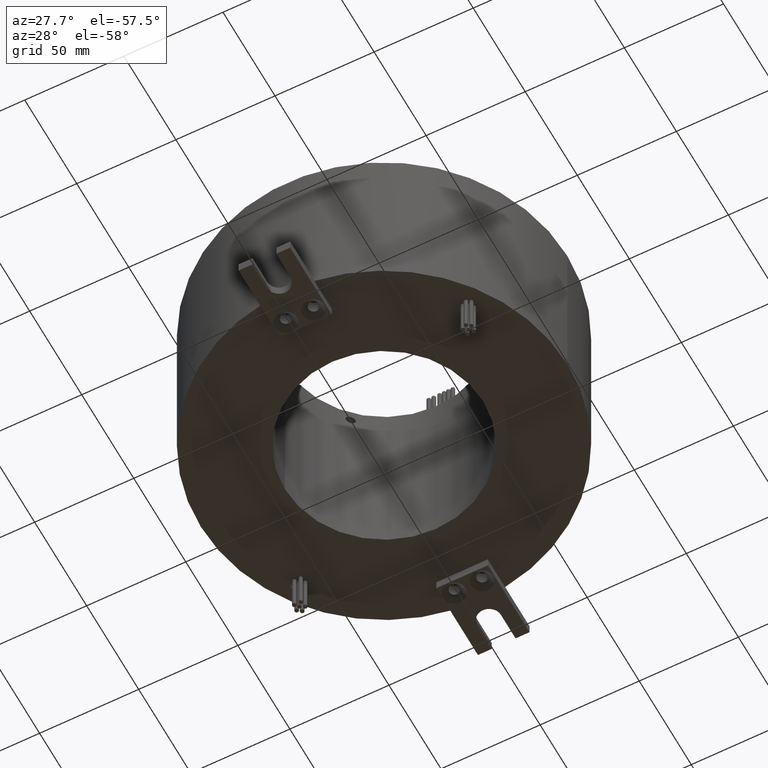
[diagram: clean part render]
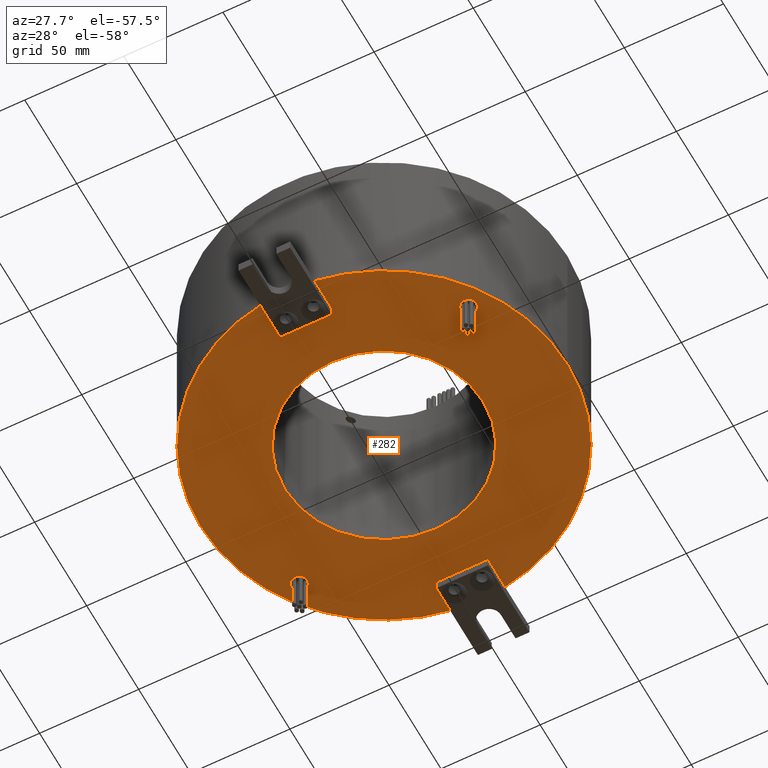
[diagram: same view with one face highlighted and labeled with its STEP entity id]
A machine part, auxiliary view. The second image highlights one B-rep face of the part: STEP entity #282.
In plain terms, the highlighted planar face has unit normal (0, -0, 1).
Its self-contained STEP definition (entity closure, byte-faithful):
#51 = DIRECTION ( 'NONE',  ( 1.000000000000000000, 0.0000000000000000000, 0.0000000000000000000 ) ) ;
#83 = VECTOR ( 'NONE', #1639, 1000.000000000000000 ) ;
#180 = CARTESIAN_POINT ( 'NONE',  ( -13.00000000000000000, -91.58193053217429700, -102.0000000000000100 ) ) ;
#183 = CIRCLE ( 'NONE', #247, 50.00000000000000000 ) ;
#212 = VERTEX_POINT ( 'NONE', #682 ) ;
#227 = EDGE_CURVE ( 'NONE', #212, #3614, #2913, .T. ) ;
#234 = VERTEX_POINT ( 'NONE', #3863 ) ;
#247 = AXIS2_PLACEMENT_3D ( 'NONE', #4790, #2410, #51 ) ;
#282 = ADVANCED_FACE ( 'NONE', ( #2545, #4661, #464, #592 ), #5061, .F. ) ;
#332 = EDGE_CURVE ( 'NONE', #2684, #212, #1148, .T. ) ;
#342 = DIRECTION ( 'NONE',  ( 0.0000000000000000000, -0.0000000000000000000, 1.000000000000000000 ) ) ;
#344 = DIRECTION ( 'NONE',  ( -0.0000000000000000000, -0.0000000000000000000, 1.000000000000000000 ) ) ;
#358 = DIRECTION ( 'NONE',  ( -8.673617379884036700E-017, 1.000000000000000000, 0.0000000000000000000 ) ) ;
#361 = VERTEX_POINT ( 'NONE', #2407 ) ;
#464 = FACE_BOUND ( 'NONE', #3023, .T. ) ;
#466 = ORIENTED_EDGE ( 'NONE', *, *, #1718, .F. ) ;
#478 = ORIENTED_EDGE ( 'NONE', *, *, #227, .F. ) ;
#487 = CARTESIAN_POINT ( 'NONE',  ( 12.99999999999999800, 75.00000000000000000, -102.0000000000000100 ) ) ;
#592 = FACE_OUTER_BOUND ( 'NONE', #5089, .T. ) ;
#682 = CARTESIAN_POINT ( 'NONE',  ( -13.00000000000000200, 75.00000000000000000, -102.0000000000000100 ) ) ;
#689 = DIRECTION ( 'NONE',  ( 0.0000000000000000000, 0.0000000000000000000, -1.000000000000000000 ) ) ;
#700 = VERTEX_POINT ( 'NONE', #3499 ) ;
#703 = EDGE_CURVE ( 'NONE', #2045, #838, #2113, .T. ) ;
#711 = CIRCLE ( 'NONE', #2582, 4.000000000000017800 ) ;
#720 = DIRECTION ( 'NONE',  ( 8.673617379884036700E-017, 1.000000000000000000, -0.0000000000000000000 ) ) ;
#747 = ORIENTED_EDGE ( 'NONE', *, *, #1646, .F. ) ;
#752 = AXIS2_PLACEMENT_3D ( 'NONE', #2695, #344, #3075 ) ;
#780 = CARTESIAN_POINT ( 'NONE',  ( -67.58004365384175600, 47.32005599896139400, -102.0000000000000100 ) ) ;
#787 = ORIENTED_EDGE ( 'NONE', *, *, #1426, .F. ) ;
#803 = ORIENTED_EDGE ( 'NONE', *, *, #4823, .T. ) ;
#830 = DIRECTION ( 'NONE',  ( -0.0000000000000000000, 0.0000000000000000000, -1.000000000000000000 ) ) ;
#838 = VERTEX_POINT ( 'NONE', #4737 ) ;
#878 = CIRCLE ( 'NONE', #3405, 50.00000000000000000 ) ;
#956 = VECTOR ( 'NONE', #720, 1000.000000000000000 ) ;
#979 = EDGE_CURVE ( 'NONE', #700, #234, #3157, .T. ) ;
#996 = CARTESIAN_POINT ( 'NONE',  ( -13.00000000000000200, -75.00000000000000000, -102.0000000000000100 ) ) ;
#1069 = CARTESIAN_POINT ( 'NONE',  ( 50.00000000000000000, 0.0000000000000000000, -102.0000000000000100 ) ) ;
#1078 = ORIENTED_EDGE ( 'NONE', *, *, #5056, .T. ) ;
#1092 = ORIENTED_EDGE ( 'NONE', *, *, #703, .F. ) ;
#1136 = ORIENTED_EDGE ( 'NONE', *, *, #4863, .F. ) ;
#1148 = LINE ( 'NONE', #1557, #83 ) ;
#1175 = AXIS2_PLACEMENT_3D ( 'NONE', #780, #3513, #1179 ) ;
#1179 = DIRECTION ( 'NONE',  ( -1.000000000000000000, 0.0000000000000000000, 0.0000000000000000000 ) ) ;
#1218 = DIRECTION ( 'NONE',  ( -0.0000000000000000000, -0.0000000000000000000, 1.000000000000000000 ) ) ;
#1340 = CIRCLE ( 'NONE', #3950, 92.50000000000000000 ) ;
#1350 = VECTOR ( 'NONE', #358, 1000.000000000000000 ) ;
#1395 = DIRECTION ( 'NONE',  ( -0.0000000000000000000, -0.0000000000000000000, 1.000000000000000000 ) ) ;
#1417 = CARTESIAN_POINT ( 'NONE',  ( 13.00000000000000000, 91.58193053217431200, -102.0000000000000100 ) ) ;
#1426 = EDGE_CURVE ( 'NONE', #361, #1448, #1340, .T. ) ;
#1427 = DIRECTION ( 'NONE',  ( 0.0000000000000000000, 0.0000000000000000000, 1.000000000000000000 ) ) ;
#1448 = VERTEX_POINT ( 'NONE', #1417 ) ;
#1449 = CIRCLE ( 'NONE', #3192, 4.000000000000003600 ) ;
#1530 = DIRECTION ( 'NONE',  ( -0.0000000000000000000, 0.0000000000000000000, -1.000000000000000000 ) ) ;
#1542 = CARTESIAN_POINT ( 'NONE',  ( -92.50000000000000000, 1.132798289211301700E-014, -102.0000000000000100 ) ) ;
#1557 = CARTESIAN_POINT ( 'NONE',  ( 12.99999999999999800, 75.00000000000000000, -102.0000000000000100 ) ) ;
#1639 = DIRECTION ( 'NONE',  ( -1.000000000000000000, 0.0000000000000000000, 0.0000000000000000000 ) ) ;
#1646 = EDGE_CURVE ( 'NONE', #4409, #4805, #3418, .T. ) ;
#1718 = EDGE_CURVE ( 'NONE', #4526, #4727, #4230, .T. ) ;
#1863 = CARTESIAN_POINT ( 'NONE',  ( 0.0000000000000000000, 0.0000000000000000000, -102.0000000000000100 ) ) ;
#1957 = ORIENTED_EDGE ( 'NONE', *, *, #4522, .F. ) ;
#2025 = ORIENTED_EDGE ( 'NONE', *, *, #979, .F. ) ;
#2045 = VERTEX_POINT ( 'NONE', #2692 ) ;
#2113 = CIRCLE ( 'NONE', #1175, 4.000000000000003600 ) ;
#2120 = CARTESIAN_POINT ( 'NONE',  ( 13.00000000000000200, -115.0000000000000000, -102.0000000000000100 ) ) ;
#2232 = CARTESIAN_POINT ( 'NONE',  ( 63.58004365384170600, -47.32005599896140800, -102.0000000000000100 ) ) ;
#2249 = DIRECTION ( 'NONE',  ( 1.000000000000000000, 0.0000000000000000000, 0.0000000000000000000 ) ) ;
#2324 = ORIENTED_EDGE ( 'NONE', *, *, #3681, .F. ) ;
#2345 = CIRCLE ( 'NONE', #3328, 92.50000000000000000 ) ;
#2388 = VERTEX_POINT ( 'NONE', #1542 ) ;
#2407 = CARTESIAN_POINT ( 'NONE',  ( 92.50000000000000000, 0.0000000000000000000, -102.0000000000000100 ) ) ;
#2410 = DIRECTION ( 'NONE',  ( 0.0000000000000000000, 0.0000000000000000000, 1.000000000000000000 ) ) ;
#2469 = CARTESIAN_POINT ( 'NONE',  ( 71.58004365384174200, -47.32005599896140800, -102.0000000000000100 ) ) ;
#2513 = DIRECTION ( 'NONE',  ( 8.673617379884034200E-017, -1.000000000000000000, -0.0000000000000000000 ) ) ;
#2545 = FACE_BOUND ( 'NONE', #5071, .T. ) ;
#2582 = AXIS2_PLACEMENT_3D ( 'NONE', #3868, #1530, #4269 ) ;
#2628 = DIRECTION ( 'NONE',  ( 1.000000000000000000, -0.0000000000000000000, -0.0000000000000000000 ) ) ;
#2634 = DIRECTION ( 'NONE',  ( -8.673617379884034200E-017, -1.000000000000000000, 0.0000000000000000000 ) ) ;
#2684 = VERTEX_POINT ( 'NONE', #487 ) ;
#2692 = CARTESIAN_POINT ( 'NONE',  ( -71.58004365384175600, 47.32005599896139400, -102.0000000000000100 ) ) ;
#2695 = CARTESIAN_POINT ( 'NONE',  ( 0.0000000000000000000, 0.0000000000000000000, -102.0000000000000100 ) ) ;
#2700 = CARTESIAN_POINT ( 'NONE',  ( -12.99999999999999800, -114.9999999999999900, -102.0000000000000100 ) ) ;
#2706 = CARTESIAN_POINT ( 'NONE',  ( -50.00000000000000000, 6.123233995736766100E-015, -102.0000000000000100 ) ) ;
#2899 = VECTOR ( 'NONE', #2628, 1000.000000000000000 ) ;
#2913 = LINE ( 'NONE', #3054, #956 ) ;
#2930 = AXIS2_PLACEMENT_3D ( 'NONE', #4675, #342, #3074 ) ;
#2965 = AXIS2_PLACEMENT_3D ( 'NONE', #3166, #830, #3563 ) ;
#2987 = VERTEX_POINT ( 'NONE', #1069 ) ;
#3003 = CARTESIAN_POINT ( 'NONE',  ( 13.00000000000000200, 115.0000000000000000, -102.0000000000000100 ) ) ;
#3022 = CARTESIAN_POINT ( 'NONE',  ( -67.58004365384175600, 47.32005599896139400, -102.0000000000000100 ) ) ;
#3023 = EDGE_LOOP ( 'NONE', ( #1078, #803 ) ) ;
#3043 = EDGE_CURVE ( 'NONE', #4727, #4526, #711, .T. ) ;
#3054 = CARTESIAN_POINT ( 'NONE',  ( -12.99999999999999800, 114.9999999999999900, -102.0000000000000100 ) ) ;
#3074 = DIRECTION ( 'NONE',  ( 1.000000000000000000, 0.0000000000000000000, 0.0000000000000000000 ) ) ;
#3075 = DIRECTION ( 'NONE',  ( 1.000000000000000000, 0.0000000000000000000, 0.0000000000000000000 ) ) ;
#3157 = LINE ( 'NONE', #2120, #4226 ) ;
#3166 = CARTESIAN_POINT ( 'NONE',  ( 67.58004365384172700, -47.32005599896140800, -102.0000000000000100 ) ) ;
#3176 = ORIENTED_EDGE ( 'NONE', *, *, #3604, .F. ) ;
#3192 = AXIS2_PLACEMENT_3D ( 'NONE', #3022, #689, #3431 ) ;
#3194 = CIRCLE ( 'NONE', #3502, 92.50000000000000000 ) ;
#3328 = AXIS2_PLACEMENT_3D ( 'NONE', #1863, #4622, #2249 ) ;
#3405 = AXIS2_PLACEMENT_3D ( 'NONE', #3753, #1427, #4166 ) ;
#3412 = EDGE_LOOP ( 'NONE', ( #1092, #4543 ) ) ;
#3418 = LINE ( 'NONE', #2700, #1350 ) ;
#3428 = CARTESIAN_POINT ( 'NONE',  ( -13.00000000000000000, 91.58193053217429700, -102.0000000000000100 ) ) ;
#3431 = DIRECTION ( 'NONE',  ( -1.000000000000000000, 0.0000000000000000000, 0.0000000000000000000 ) ) ;
#3466 = VECTOR ( 'NONE', #2634, 1000.000000000000000 ) ;
#3499 = CARTESIAN_POINT ( 'NONE',  ( 12.99999999999999800, -75.00000000000000000, -102.0000000000000100 ) ) ;
#3502 = AXIS2_PLACEMENT_3D ( 'NONE', #3551, #1218, #3949 ) ;
#3513 = DIRECTION ( 'NONE',  ( 0.0000000000000000000, 0.0000000000000000000, -1.000000000000000000 ) ) ;
#3551 = CARTESIAN_POINT ( 'NONE',  ( 0.0000000000000000000, 0.0000000000000000000, -102.0000000000000100 ) ) ;
#3563 = DIRECTION ( 'NONE',  ( 1.000000000000000000, 0.0000000000000000000, 0.0000000000000000000 ) ) ;
#3604 = EDGE_CURVE ( 'NONE', #1448, #2684, #3719, .T. ) ;
#3614 = VERTEX_POINT ( 'NONE', #3428 ) ;
#3681 = EDGE_CURVE ( 'NONE', #234, #361, #4405, .T. ) ;
#3709 = VERTEX_POINT ( 'NONE', #2706 ) ;
#3719 = LINE ( 'NONE', #3003, #3466 ) ;
#3732 = CARTESIAN_POINT ( 'NONE',  ( 0.0000000000000000000, 0.0000000000000000000, -102.0000000000000100 ) ) ;
#3733 = ORIENTED_EDGE ( 'NONE', *, *, #3043, .F. ) ;
#3753 = CARTESIAN_POINT ( 'NONE',  ( 0.0000000000000000000, 0.0000000000000000000, -102.0000000000000100 ) ) ;
#3863 = CARTESIAN_POINT ( 'NONE',  ( 13.00000000000000000, -91.58193053217431200, -102.0000000000000100 ) ) ;
#3868 = CARTESIAN_POINT ( 'NONE',  ( 67.58004365384172700, -47.32005599896140800, -102.0000000000000100 ) ) ;
#3949 = DIRECTION ( 'NONE',  ( 1.000000000000000000, 0.0000000000000000000, 0.0000000000000000000 ) ) ;
#3950 = AXIS2_PLACEMENT_3D ( 'NONE', #3732, #1395, #4127 ) ;
#3953 = LINE ( 'NONE', #4998, #2899 ) ;
#4127 = DIRECTION ( 'NONE',  ( 1.000000000000000000, 0.0000000000000000000, 0.0000000000000000000 ) ) ;
#4166 = DIRECTION ( 'NONE',  ( 1.000000000000000000, 0.0000000000000000000, 0.0000000000000000000 ) ) ;
#4226 = VECTOR ( 'NONE', #2513, 1000.000000000000000 ) ;
#4230 = CIRCLE ( 'NONE', #2965, 4.000000000000017800 ) ;
#4269 = DIRECTION ( 'NONE',  ( 1.000000000000000000, 0.0000000000000000000, 0.0000000000000000000 ) ) ;
#4272 = ORIENTED_EDGE ( 'NONE', *, *, #4637, .F. ) ;
#4405 = CIRCLE ( 'NONE', #752, 92.50000000000000000 ) ;
#4409 = VERTEX_POINT ( 'NONE', #180 ) ;
#4522 = EDGE_CURVE ( 'NONE', #4805, #700, #3953, .T. ) ;
#4526 = VERTEX_POINT ( 'NONE', #2232 ) ;
#4543 = ORIENTED_EDGE ( 'NONE', *, *, #4874, .F. ) ;
#4622 = DIRECTION ( 'NONE',  ( -0.0000000000000000000, -0.0000000000000000000, 1.000000000000000000 ) ) ;
#4637 = EDGE_CURVE ( 'NONE', #3614, #2388, #3194, .T. ) ;
#4661 = FACE_BOUND ( 'NONE', #3412, .T. ) ;
#4675 = CARTESIAN_POINT ( 'NONE',  ( 0.0000000000000000000, 92.50000000000000000, -102.0000000000000100 ) ) ;
#4727 = VERTEX_POINT ( 'NONE', #2469 ) ;
#4737 = CARTESIAN_POINT ( 'NONE',  ( -63.58004365384174900, 47.32005599896139400, -102.0000000000000100 ) ) ;
#4790 = CARTESIAN_POINT ( 'NONE',  ( 0.0000000000000000000, 0.0000000000000000000, -102.0000000000000100 ) ) ;
#4805 = VERTEX_POINT ( 'NONE', #996 ) ;
#4823 = EDGE_CURVE ( 'NONE', #3709, #2987, #878, .T. ) ;
#4863 = EDGE_CURVE ( 'NONE', #2388, #4409, #2345, .T. ) ;
#4874 = EDGE_CURVE ( 'NONE', #838, #2045, #1449, .T. ) ;
#4931 = ORIENTED_EDGE ( 'NONE', *, *, #332, .F. ) ;
#4998 = CARTESIAN_POINT ( 'NONE',  ( 12.99999999999999800, -75.00000000000000000, -102.0000000000000100 ) ) ;
#5056 = EDGE_CURVE ( 'NONE', #2987, #3709, #183, .T. ) ;
#5061 = PLANE ( 'NONE',  #2930 ) ;
#5071 = EDGE_LOOP ( 'NONE', ( #466, #3733 ) ) ;
#5089 = EDGE_LOOP ( 'NONE', ( #478, #4931, #3176, #787, #2324, #2025, #1957, #747, #1136, #4272 ) ) ;